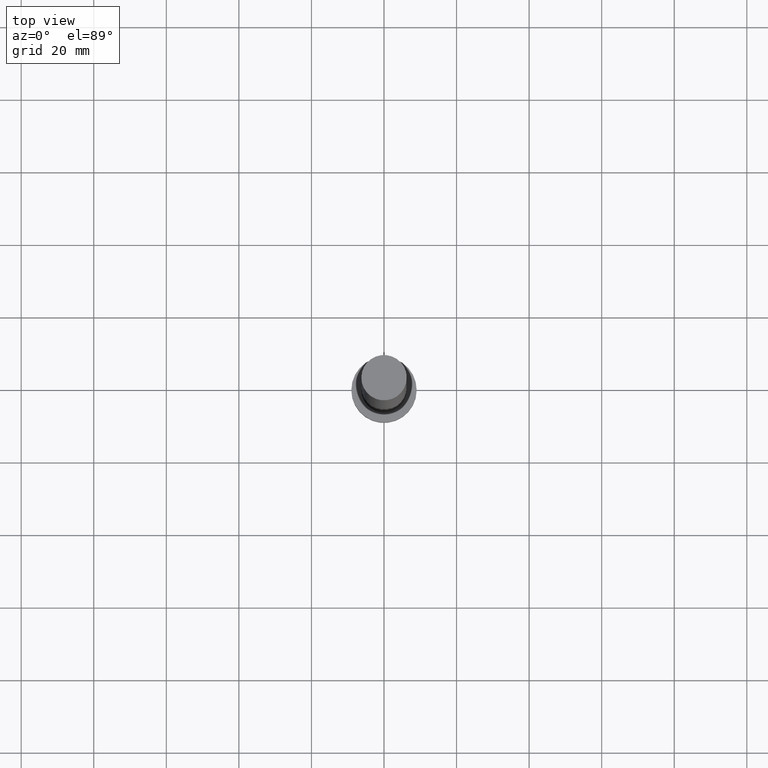
[diagram: clean part render]
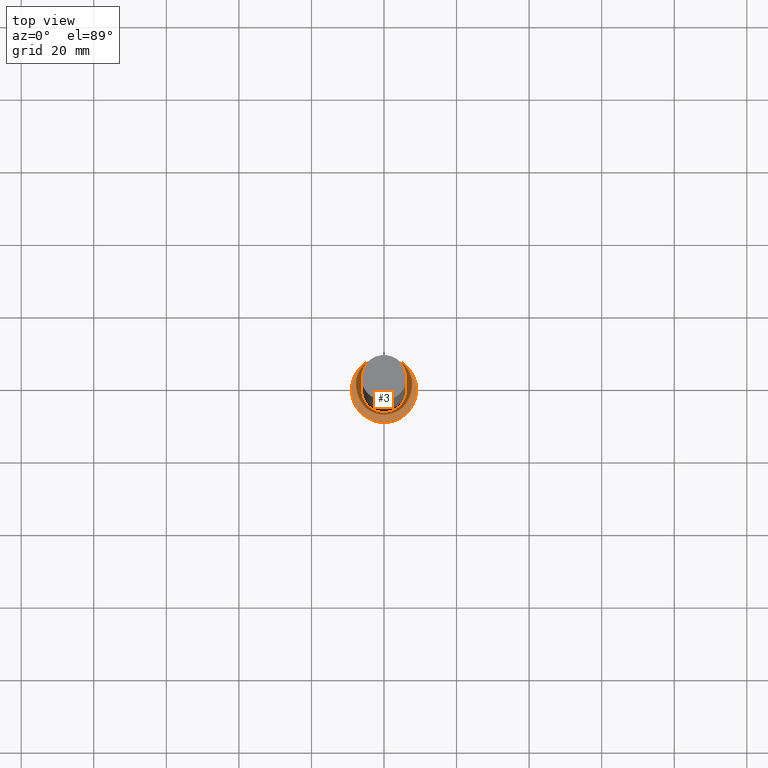
[diagram: same view with one face highlighted and labeled with its STEP entity id]
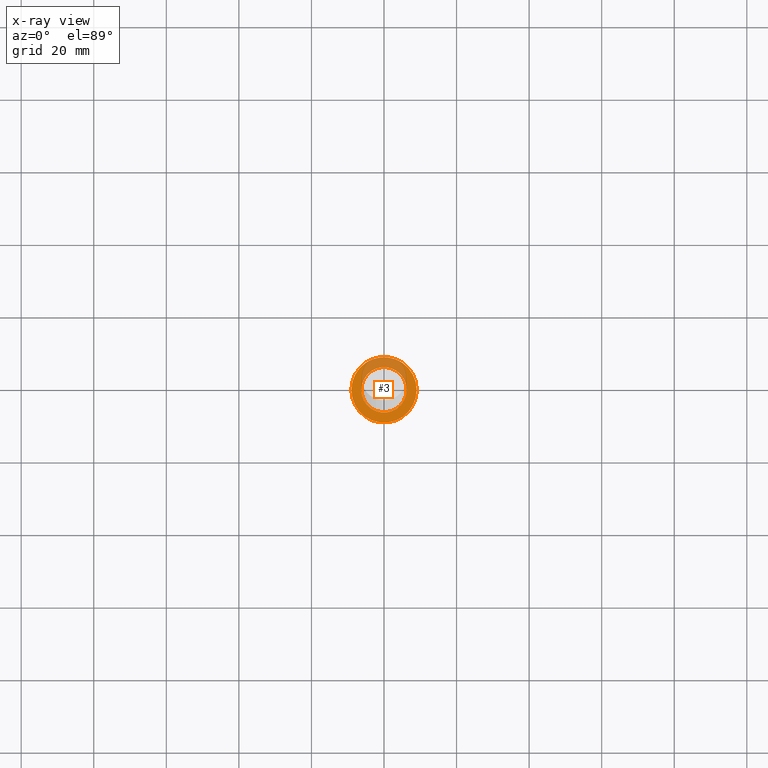
[diagram: x-ray of the same camera — body ghosted, the highlighted face saturated]
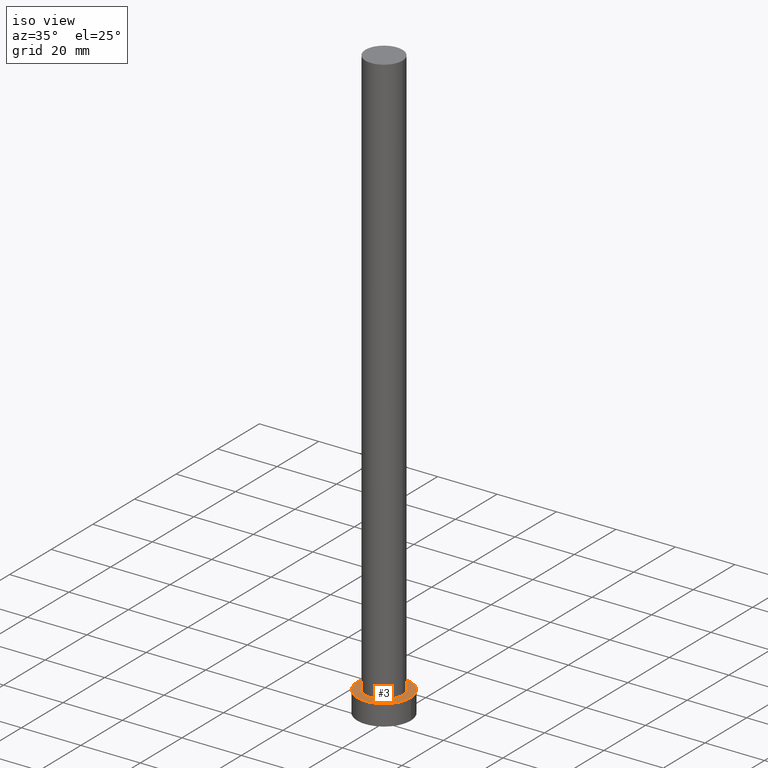
[diagram: same view with one face highlighted and labeled with its STEP entity id]
A machine part, top view. The second image highlights one B-rep face of the part: STEP entity #3.
The next image is the same camera in x-ray: the body ghosted, the highlighted face saturated — about 29% of this face is hidden behind the body in this view.
A second angle (iso view) of the same face is appended — the face is thin or edge-on in the first view.
In plain terms, the highlighted planar face has unit normal (0, 0, 1).
Its self-contained STEP definition (entity closure, byte-faithful):
#2 = AXIS2_PLACEMENT_3D ( 'NONE', #128, #254, #253 ) ;
#3 = ADVANCED_FACE ( 'NONE', ( #234, #156 ), #169, .T. ) ;
#4 = DIRECTION ( 'NONE',  ( 0.000000000000000000, 0.000000000000000000, 1.000000000000000000 ) ) ;
#7 = DIRECTION ( 'NONE',  ( 0.000000000000000000, 0.000000000000000000, 1.000000000000000000 ) ) ;
#10 = CIRCLE ( 'NONE', #252, 6.250000000000000000 ) ;
#11 = AXIS2_PLACEMENT_3D ( 'NONE', #45, #7, #80 ) ;
#12 = EDGE_LOOP ( 'NONE', ( #154, #17 ) ) ;
#17 = ORIENTED_EDGE ( 'NONE', *, *, #211, .T. ) ;
#21 = CIRCLE ( 'NONE', #204, 6.250000000000000000 ) ;
#40 = VERTEX_POINT ( 'NONE', #113 ) ;
#45 = CARTESIAN_POINT ( 'NONE',  ( 0.000000000000000000, 0.000000000000000000, 7.000000000000000000 ) ) ;
#61 = EDGE_LOOP ( 'NONE', ( #75, #172 ) ) ;
#75 = ORIENTED_EDGE ( 'NONE', *, *, #205, .F. ) ;
#80 = DIRECTION ( 'NONE',  ( 1.000000000000000000, 0.000000000000000000, 0.000000000000000000 ) ) ;
#81 = CARTESIAN_POINT ( 'NONE',  ( 0.000000000000000000, 0.000000000000000000, 7.000000000000000000 ) ) ;
#83 = CIRCLE ( 'NONE', #87, 9.000000000000000000 ) ;
#85 = CARTESIAN_POINT ( 'NONE',  ( -9.000000000000000000, 0.000000000000000000, 7.000000000000000000 ) ) ;
#87 = AXIS2_PLACEMENT_3D ( 'NONE', #220, #4, #134 ) ;
#90 = EDGE_CURVE ( 'NONE', #248, #40, #83, .T. ) ;
#95 = VERTEX_POINT ( 'NONE', #217 ) ;
#103 = DIRECTION ( 'NONE',  ( 1.000000000000000000, 0.000000000000000000, 0.000000000000000000 ) ) ;
#113 = CARTESIAN_POINT ( 'NONE',  ( 9.000000000000000000, 1.102182119232617714E-15, 7.000000000000000000 ) ) ;
#128 = CARTESIAN_POINT ( 'NONE',  ( 0.000000000000000000, 0.000000000000000000, 7.000000000000000000 ) ) ;
#134 = DIRECTION ( 'NONE',  ( 1.000000000000000000, 0.000000000000000000, 0.000000000000000000 ) ) ;
#140 = EDGE_CURVE ( 'NONE', #251, #95, #10, .T. ) ;
#154 = ORIENTED_EDGE ( 'NONE', *, *, #90, .T. ) ;
#156 = FACE_OUTER_BOUND ( 'NONE', #12, .T. ) ;
#162 = CARTESIAN_POINT ( 'NONE',  ( 6.250000000000000000, 7.654042494670957606E-16, 7.000000000000000000 ) ) ;
#169 = PLANE ( 'NONE',  #2 ) ;
#172 = ORIENTED_EDGE ( 'NONE', *, *, #140, .F. ) ;
#175 = CARTESIAN_POINT ( 'NONE',  ( 0.000000000000000000, 0.000000000000000000, 7.000000000000000000 ) ) ;
#178 = DIRECTION ( 'NONE',  ( 0.000000000000000000, 0.000000000000000000, 1.000000000000000000 ) ) ;
#200 = DIRECTION ( 'NONE',  ( 0.000000000000000000, 0.000000000000000000, 1.000000000000000000 ) ) ;
#204 = AXIS2_PLACEMENT_3D ( 'NONE', #81, #178, #219 ) ;
#205 = EDGE_CURVE ( 'NONE', #95, #251, #21, .T. ) ;
#211 = EDGE_CURVE ( 'NONE', #40, #248, #245, .T. ) ;
#217 = CARTESIAN_POINT ( 'NONE',  ( -6.250000000000000000, 0.000000000000000000, 7.000000000000000000 ) ) ;
#219 = DIRECTION ( 'NONE',  ( 1.000000000000000000, 0.000000000000000000, 0.000000000000000000 ) ) ;
#220 = CARTESIAN_POINT ( 'NONE',  ( 0.000000000000000000, 0.000000000000000000, 7.000000000000000000 ) ) ;
#234 = FACE_BOUND ( 'NONE', #61, .T. ) ;
#245 = CIRCLE ( 'NONE', #11, 9.000000000000000000 ) ;
#248 = VERTEX_POINT ( 'NONE', #85 ) ;
#251 = VERTEX_POINT ( 'NONE', #162 ) ;
#252 = AXIS2_PLACEMENT_3D ( 'NONE', #175, #200, #103 ) ;
#253 = DIRECTION ( 'NONE',  ( 1.000000000000000000, 0.000000000000000000, -0.000000000000000000 ) ) ;
#254 = DIRECTION ( 'NONE',  ( 0.000000000000000000, 0.000000000000000000, 1.000000000000000000 ) ) ;